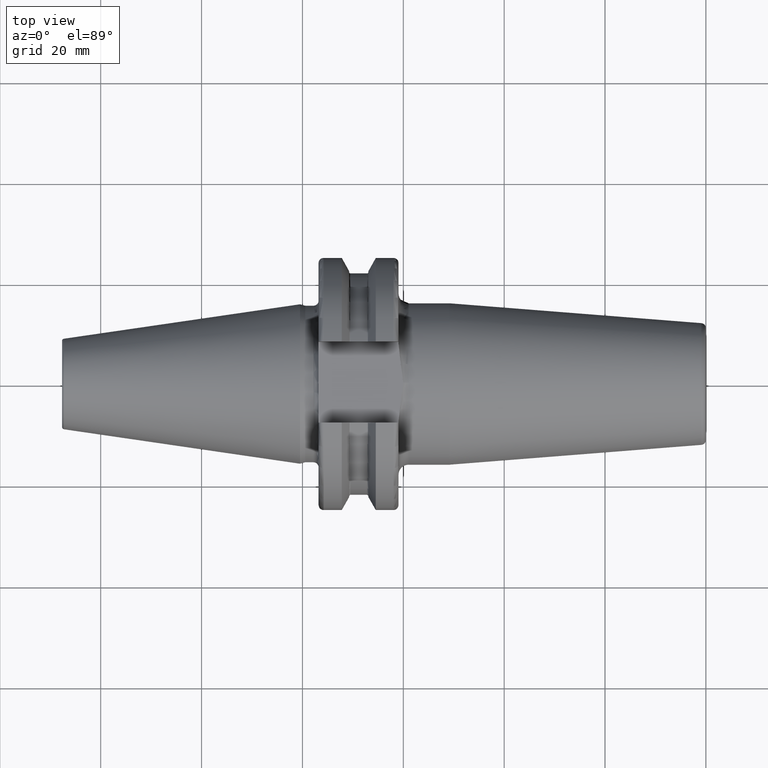
[diagram: clean part render]
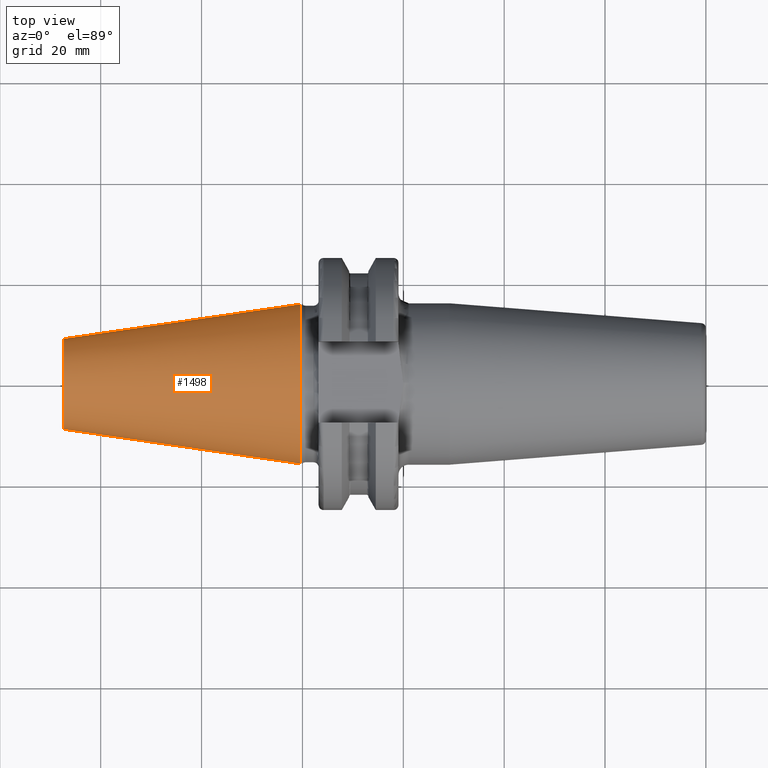
[diagram: same view with one face highlighted and labeled with its STEP entity id]
A machine part, top view. The second image highlights one B-rep face of the part: STEP entity #1498.
In plain terms, the highlighted conical surface has half-angle 8.298 deg.
Its self-contained STEP definition (entity closure, byte-faithful):
#37=CARTESIAN_POINT('',(-4.726494340113E1,0.E0,0.E0));
#38=DIRECTION('',(1.E0,0.E0,0.E0));
#39=DIRECTION('',(0.E0,1.E0,0.E0));
#40=AXIS2_PLACEMENT_3D('',#37,#38,#39);
#42=CARTESIAN_POINT('',(-4.896823332305E-1,0.E0,0.E0));
#43=DIRECTION('',(1.E0,0.E0,0.E0));
#44=DIRECTION('',(0.E0,1.E0,0.E0));
#45=AXIS2_PLACEMENT_3D('',#42,#43,#44);
#47=DIRECTION('',(-9.895312636440E-1,-1.443186691705E-1,0.E0));
#48=VECTOR('',#47,4.727011948632E1);
#49=CARTESIAN_POINT('',(-4.896823332305E-1,1.580358204157E1,0.E0));
#50=LINE('',#49,#48);
#51=DIRECTION('',(-9.895312636440E-1,1.443186691705E-1,0.E0));
#52=VECTOR('',#51,4.727011948632E1);
#53=CARTESIAN_POINT('',(-4.896823332305E-1,-1.580358204157E1,0.E0));
#54=LINE('',#53,#52);
#1183=CARTESIAN_POINT('',(-4.726494340113E1,8.981621305778E0,0.E0));
#1185=VERTEX_POINT('',#1183);
#1187=CARTESIAN_POINT('',(-4.726494340113E1,-8.981621305778E0,0.E0));
#1189=VERTEX_POINT('',#1187);
#1253=CARTESIAN_POINT('',(-4.896823332305E-1,1.580358204157E1,0.E0));
#1254=VERTEX_POINT('',#1253);
#1255=CARTESIAN_POINT('',(-4.896823332305E-1,-1.580358204157E1,0.E0));
#1256=VERTEX_POINT('',#1255);
#1484=CARTESIAN_POINT('',(-2.387731286718E1,0.E0,0.E0));
#1485=DIRECTION('',(1.E0,0.E0,0.E0));
#1486=DIRECTION('',(0.E0,-1.E0,0.E0));
#1487=AXIS2_PLACEMENT_3D('',#1484,#1485,#1486);
#1488=CONICAL_SURFACE('',#1487,1.239260167368E1,8.297826828206E0);
#1490=ORIENTED_EDGE('',*,*,#1489,.F.);
#1492=ORIENTED_EDGE('',*,*,#1491,.T.);
#1494=ORIENTED_EDGE('',*,*,#1493,.T.);
#1495=ORIENTED_EDGE('',*,*,#1477,.F.);
#1496=EDGE_LOOP('',(#1490,#1492,#1494,#1495));
#1497=FACE_OUTER_BOUND('',#1496,.F.);
#1498=ADVANCED_FACE('',(#1497),#1488,.T.);
#41=CIRCLE('',#40,8.981621305778E0);
#46=CIRCLE('',#45,1.580358204157E1);
#1477=EDGE_CURVE('',#1185,#1189,#41,.T.);
#1489=EDGE_CURVE('',#1254,#1185,#50,.T.);
#1491=EDGE_CURVE('',#1254,#1256,#46,.T.);
#1493=EDGE_CURVE('',#1256,#1189,#54,.T.);